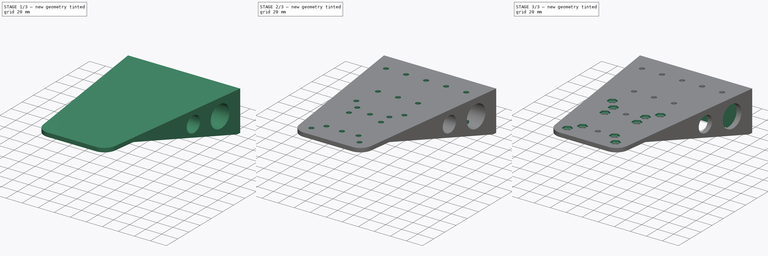
[diagram: build sequence overview — one tinted view per stage of 3, left to right]
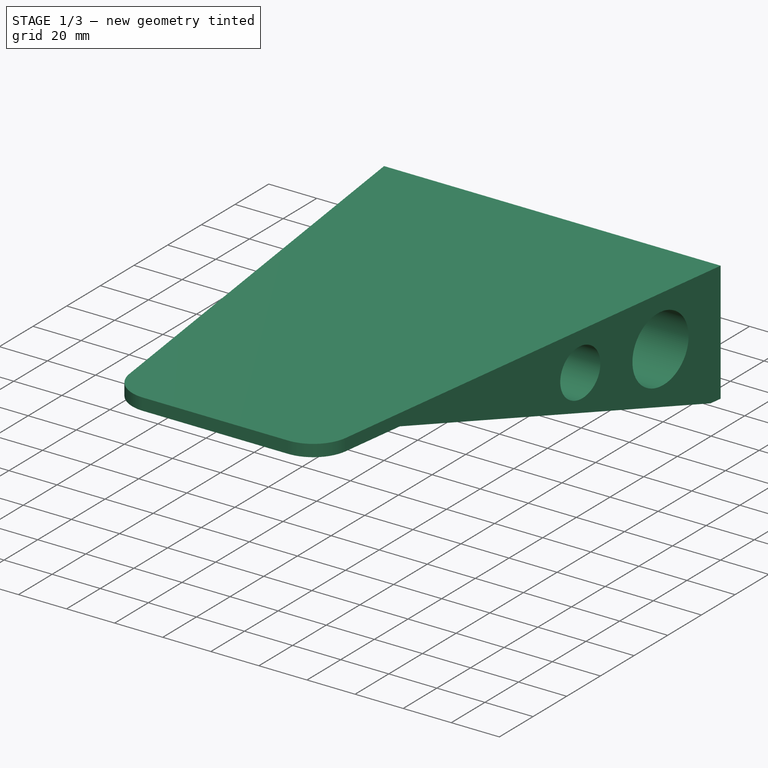
[diagram: stage 1 of 3 — iso view after this stage's code; geometry added in this stage tinted green]
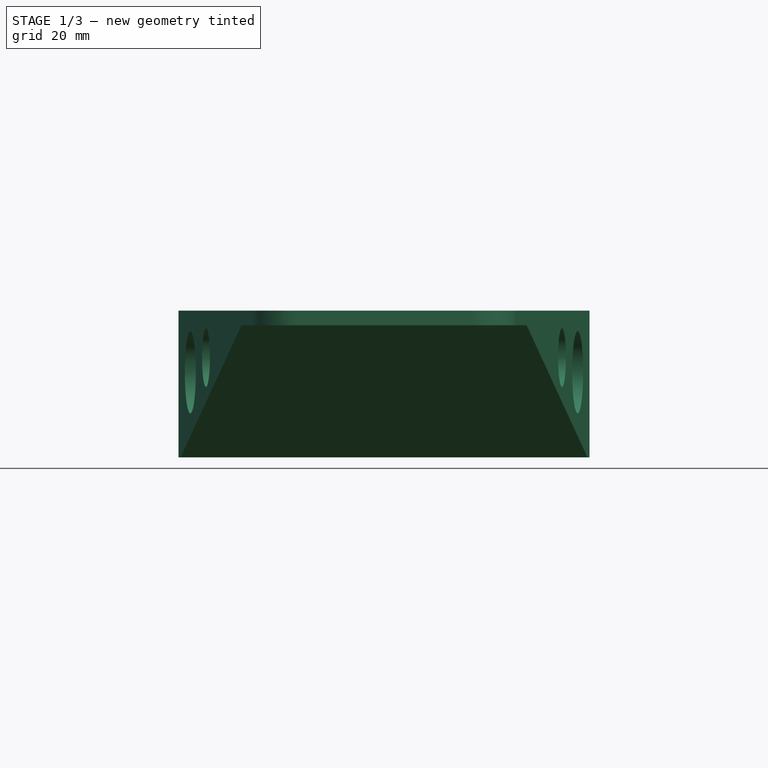
[diagram: stage 1 of 3 — front view after this stage's code; geometry added in this stage tinted green]
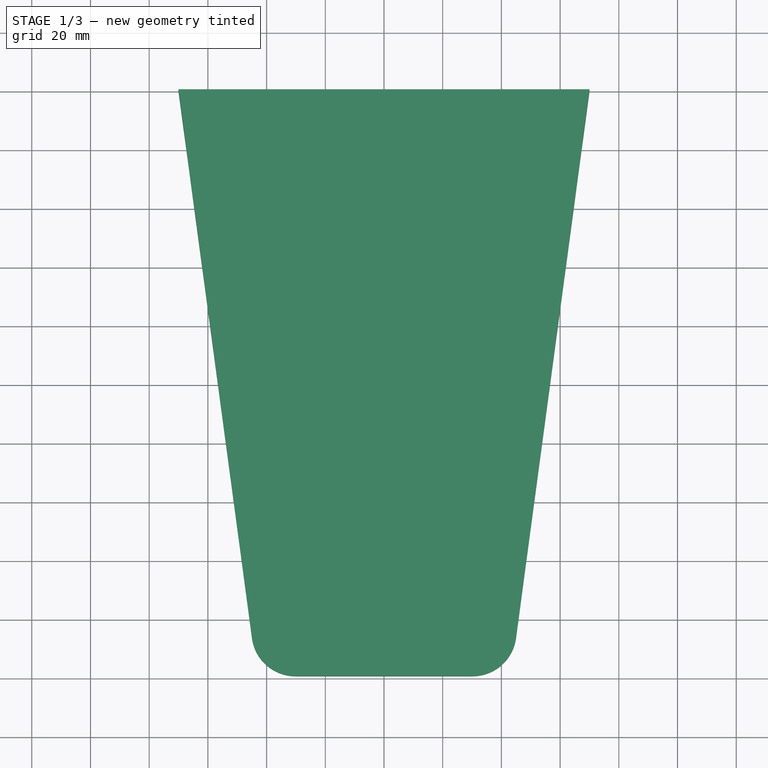
[diagram: stage 1 of 3 — top view after this stage's code; geometry added in this stage tinted green]
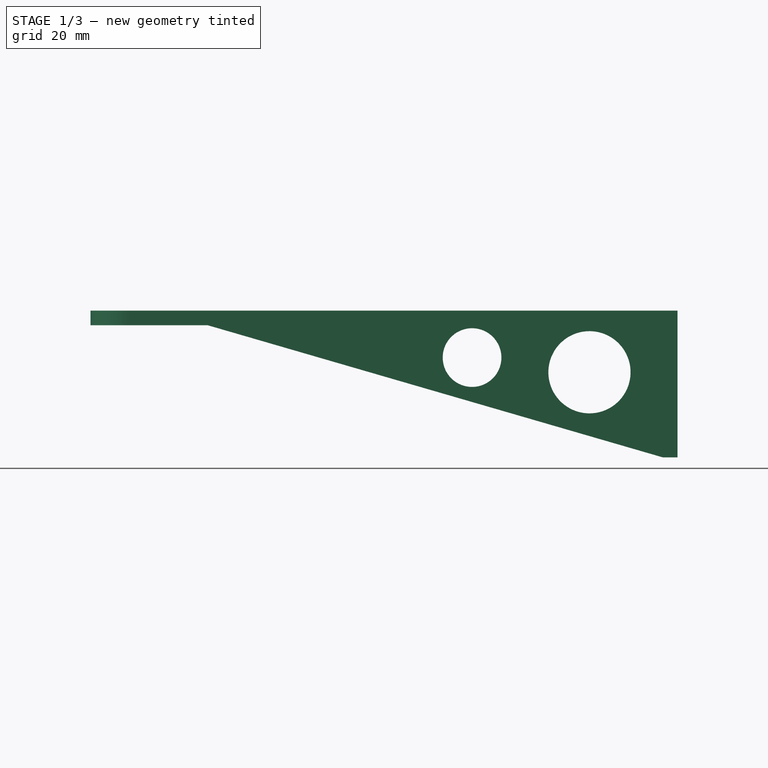
[diagram: stage 1 of 3 — right view after this stage's code; geometry added in this stage tinted green]
FCSTD DOCUMENT  (FreeCAD 0.20R)
Label: T07_rearchassis
License: All rights reserved
LicenseURL: http://en.wikipedia.org/wiki/All_rights_reserved
objects: Sketcher::SketchObject×8, PartDesign::Pocket×7, PartDesign::Pad×1, PartDesign::Body×1
note: 25 computed .brp shape members not serialized (recipe doc carries the construction recipe); baked Part::Feature solids carry a one-line shape summary decoded from their .brp

FEATURE [Sketcher::SketchObject] Sketch
  FullyConstrained = false
  MapMode = 3
  Placement = pos=(0,0,0) rot=(-0.57735,-0.57735,0.57735;2.0944rad)
  Support = -> [Sketch]
  sketch-geometry (8):
    g0: LineSegment StartX=-100 StartY=5 StartZ=0 EndX=100 EndY=5 EndZ=0
    g1: LineSegment StartX=100 StartY=5 StartZ=0 EndX=100 EndY=-45 EndZ=0
    g2: LineSegment StartX=-60 StartY=0 StartZ=0 EndX=-100 EndY=-3e-16 EndZ=0
    g3: LineSegment StartX=-100 StartY=-3e-16 StartZ=0 EndX=-100 EndY=5 EndZ=0
    g4: LineSegment StartX=100 StartY=-45 StartZ=0 EndX=95 EndY=-45 EndZ=0
    g5: LineSegment StartX=95 StartY=-45 StartZ=0 EndX=-60 EndY=0 EndZ=0
    g6: Circle CenterX=70 CenterY=-16 CenterZ=0 NormalX=0 NormalY=0 NormalZ=1 AngleXU=0 Radius=14
    g7: Circle CenterX=30 CenterY=-11 CenterZ=0 NormalX=0 NormalY=0 NormalZ=1 AngleXU=0 Radius=10
  constraints (24):
    c: Coincident(g0,g1)
    c: DistanceY(g2,g0) = 5
    c: DistanceY(g1,g0) = 50
    c: DistanceY(g2,g2) = 0
    c: Distance(g0) = 200
    c: Distance(g2) = 40
    c: DistanceX(g1,g0) = 0
    c: DistanceY(g-1,g0) = 5
    c: DistanceX(g-1,g0) = 100
    c: Coincident(g3,g0)
    c: Coincident(g3,g2)
    c: DistanceX(g2,g0) = 0
    c: Horizontal(g0)
    c: Coincident(g4,g5)
    c: Coincident(g4,g1)
    c: Coincident(g5,g2)
    c: Horizontal(g4)
    c: Distance(g4) = 5
    c: DistanceX(g6,g0) = 30
    c: DistanceX(g7,g0) = 70
    c: DistanceY(g6,g0) = 21
    c: DistanceY(g7,g0) = 16
    c: Diameter(g6) = 28
    c: Diameter(g7) = 20
FEATURE [PartDesign::Pad] Pad
  AllowMultiFace = false
  Direction = (1,1,1)
  Length = 140
  Length2 = 100
  Midplane = true
  Placement = pos=(0,0,0) rot=(0.57735,0.57735,0.57735;2.0944rad)
  Profile = -> Sketch
  Type = 0
FEATURE [Sketcher::SketchObject] Sketch010
  FullyConstrained = true
  MapMode = 5
  Placement = pos=(3e-16,-5e-16,5) rot=(0,0,-1;1.5708rad)
  Support = -> [Pad]
  sketch-geometry (4):
    g0: LineSegment StartX=-100 StartY=70 StartZ=0 EndX=86.9878 EndY=45 EndZ=0
    g1: LineSegment StartX=100 StartY=70 StartZ=0 EndX=-100 EndY=70 EndZ=0
    g2: ArcOfCircle CenterX=85 CenterY=30.1323 CenterZ=0 NormalX=0 NormalY=0 NormalZ=1 AngleXU=0 Radius=15 StartAngle=0 EndAngle=1.43789
    g3: LineSegment StartX=100 StartY=70 StartZ=0 EndX=100 EndY=30.1323 EndZ=0
  constraints (11):
    c: Coincident(g1,g0)
    c: Horizontal(g1)
    c: Distance(g1) = 200
    c: DistanceY(g-1,g1) = 70
    c: DistanceX(g-1,g1) = 100
    c: Tangent(g0,g2) = 1.5708
    c: Radius(g2) = 15
    c: DistanceY(g0,g1) = 25
    c: Coincident(g3,g1)
    c: Vertical(g3)
    c: Tangent(g3,g2) = 1.5708
FEATURE [PartDesign::Pocket] Pocket
  AllowMultiFace = false
  BaseFeature = -> Pad
  Direction = (-1e-16,1e-16,-1)
  Length = 5
  Length2 = 100
  Placement = pos=(0,0,0) rot=(0.57735,0.57735,0.57735;2.0944rad)
  Profile = -> Sketch010
  Type = 1
FEATURE [Sketcher::SketchObject] Sketch011
  FullyConstrained = true
  MapMode = 5
  Placement = pos=(3e-16,-5e-16,5) rot=(0,0,-1;1.5708rad)
  Support = -> [Pocket]
  sketch-geometry (4):
    g0: LineSegment StartX=-100 StartY=-70 StartZ=0 EndX=100 EndY=-70 EndZ=0
    g1: LineSegment StartX=86.9878 StartY=-45 StartZ=0 EndX=-100 EndY=-70 EndZ=0
    g2: ArcOfCircle CenterX=85 CenterY=-30.1323 CenterZ=0 NormalX=0 NormalY=0 NormalZ=1 AngleXU=0 Radius=15 StartAngle=4.8453 EndAngle=6.28319
    g3: LineSegment StartX=100 StartY=-70 StartZ=0 EndX=100 EndY=-30.1322 EndZ=0
  constraints (12):
    c: Coincident(g1,g0)
    c: DistanceY(g0,g-1) = 70
    c: DistanceX(g-1,g0) = 100
    c: Horizontal(g0)
    c: Distance(g0) = 200
    c: Tangent(g1,g2) = 1.5708
    c: Coincident(g3,g0)
    c: Coincident(g3,g2)
    c: Vertical(g3)
    c: DistanceY(g0,g1) = 25
    c: Radius(g2) = 15
    c: Tangent(g2,g3)
FEATURE [PartDesign::Pocket] Pocket006
  AllowMultiFace = false
  BaseFeature = -> Pocket
  Direction = (-1e-16,1e-16,-1)
  Length = 5
  Length2 = 100
  Placement = pos=(0,0,0) rot=(0.57735,0.57735,0.57735;2.0944rad)
  Profile = -> Sketch011
  Type = 1
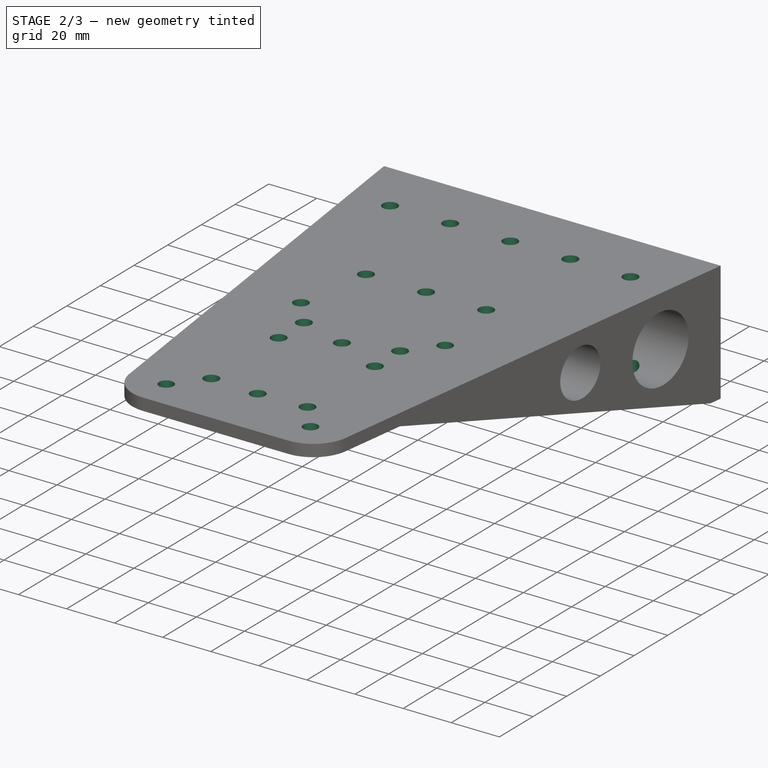
[diagram: stage 2 of 3 — iso view after this stage's code; geometry added in this stage tinted green]
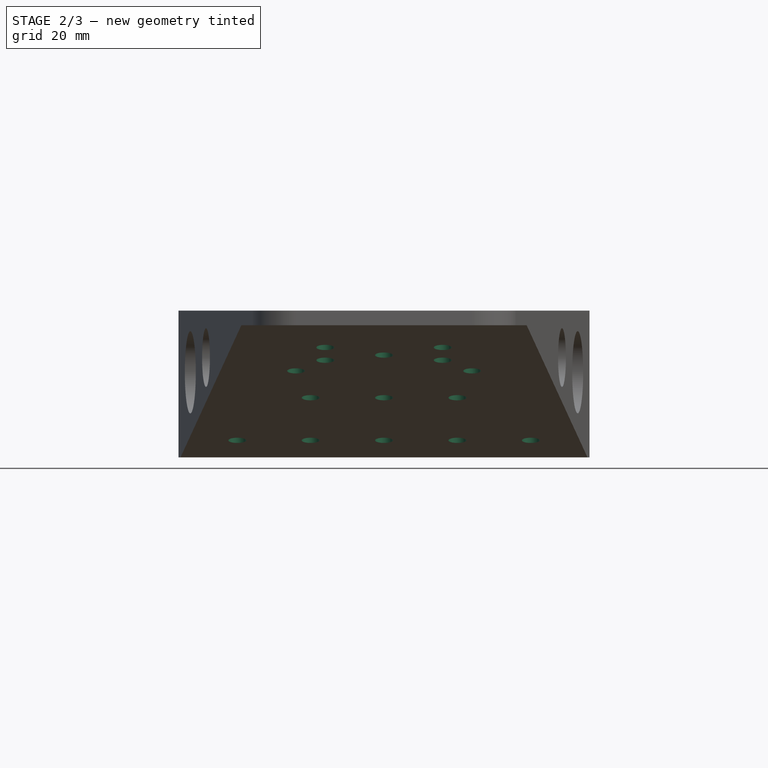
[diagram: stage 2 of 3 — front view after this stage's code; geometry added in this stage tinted green]
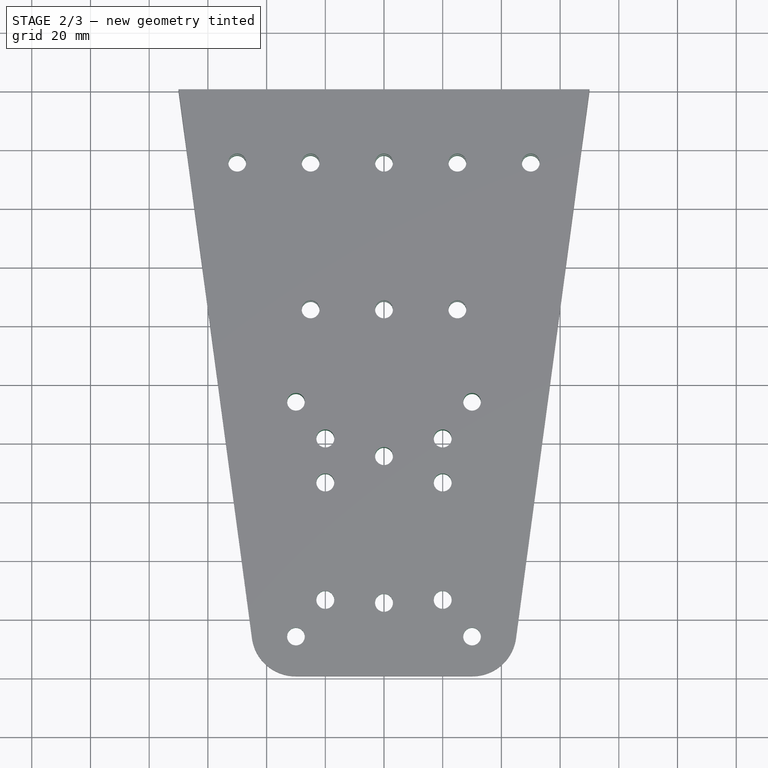
[diagram: stage 2 of 3 — top view after this stage's code; geometry added in this stage tinted green]
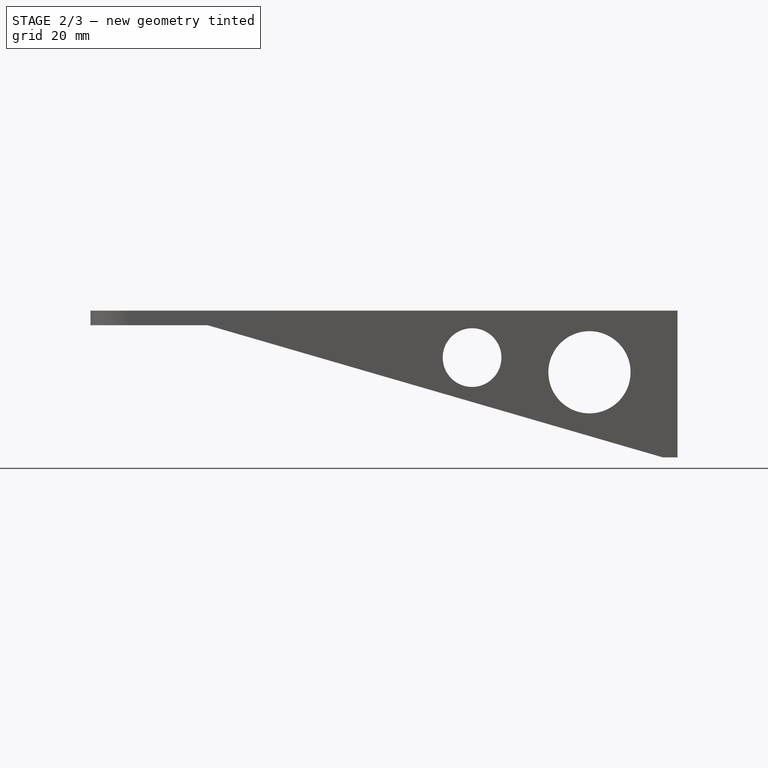
[diagram: stage 2 of 3 — right view after this stage's code; geometry added in this stage tinted green]
FEATURE [Sketcher::SketchObject] Sketch013
  FullyConstrained = true
  MapMode = 5
  Placement = pos=(-1e-15,1e-15,5) rot=(0,0,-1;1.5708rad)
  sketch-geometry (21):
    g0: Circle CenterX=-75 CenterY=0 CenterZ=0 NormalX=0 NormalY=0 NormalZ=1 AngleXU=0 Radius=3.05
    g1: Circle CenterX=-25 CenterY=0 CenterZ=0 NormalX=0 NormalY=0 NormalZ=1 AngleXU=0 Radius=3.05
    g2: Circle CenterX=25 CenterY=0 CenterZ=0 NormalX=0 NormalY=0 NormalZ=1 AngleXU=0 Radius=3.05
    g3: Circle CenterX=75 CenterY=0 CenterZ=0 NormalX=0 NormalY=0 NormalZ=1 AngleXU=0 Radius=3.05
    g4: Circle CenterX=-75 CenterY=50 CenterZ=0 NormalX=0 NormalY=0 NormalZ=1 AngleXU=0 Radius=3.05
    g5: Circle CenterX=-75 CenterY=-50 CenterZ=0 NormalX=0 NormalY=0 NormalZ=1 AngleXU=0 Radius=3.05
    g6: Circle CenterX=-75 CenterY=-25 CenterZ=0 NormalX=0 NormalY=0 NormalZ=1 AngleXU=0 Radius=3.05
    g7: Circle CenterX=-75 CenterY=25 CenterZ=0 NormalX=0 NormalY=0 NormalZ=1 AngleXU=0 Radius=3.05
    g8: Circle CenterX=-25 CenterY=25 CenterZ=0 NormalX=0 NormalY=0 NormalZ=1 AngleXU=0 Radius=3.05
    g9: Circle CenterX=-25 CenterY=-25 CenterZ=0 NormalX=0 NormalY=0 NormalZ=1 AngleXU=0 Radius=3.05
    g10: LineSegment StartX=46.5 StartY=50 StartZ=0 EndX=46.5 EndY=-50 EndZ=0
    g11: Circle CenterX=6.5 CenterY=30 CenterZ=0 NormalX=0 NormalY=0 NormalZ=1 AngleXU=0 Radius=3
    g12: Circle CenterX=86.5 CenterY=30 CenterZ=0 NormalX=0 NormalY=0 NormalZ=1 AngleXU=0 Radius=3
    g13: Circle CenterX=86.5 CenterY=-30 CenterZ=0 NormalX=0 NormalY=0 NormalZ=1 AngleXU=0 Radius=3
    g14: Circle CenterX=6.5 CenterY=-30 CenterZ=0 NormalX=0 NormalY=0 NormalZ=1 AngleXU=0 Radius=3
    g15: Circle CenterX=19 CenterY=20 CenterZ=0 NormalX=0 NormalY=0 NormalZ=1 AngleXU=0 Radius=3.05
    g16: Circle CenterX=74 CenterY=20 CenterZ=0 NormalX=0 NormalY=0 NormalZ=1 AngleXU=0 Radius=3.05
    g17: Circle CenterX=74 CenterY=-20 CenterZ=0 NormalX=0 NormalY=0 NormalZ=1 AngleXU=0 Radius=3.05
    g18: Circle CenterX=19 CenterY=-20 CenterZ=0 NormalX=0 NormalY=0 NormalZ=1 AngleXU=0 Radius=3.05
    g19: Circle CenterX=34 CenterY=20 CenterZ=0 NormalX=0 NormalY=0 NormalZ=1 AngleXU=0 Radius=3.05
    g20: Circle CenterX=34 CenterY=-20 CenterZ=0 NormalX=0 NormalY=0 NormalZ=1 AngleXU=0 Radius=3.05
  constraints (53):
    c: Equal(g7,g8)
    c: Equal(g4,g7)
    c: Equal(g7,g0)
    c: Equal(g7,g6)
    c: Equal(g7,g5)
    c: Equal(g7,g1)
    c: Equal(g7,g2)
    c: Equal(g7,g3)
    c: Diameter(g7) = 6.1
    c: DistanceX(g4,g7) = 0
    c: DistanceX(g7,g0) = 0
    c: DistanceY(g0,g-1) = 0
    c: DistanceY(g1,g-1) = 0
    c: DistanceY(g2,g-1) = 0
    c: DistanceY(g3,g-1) = 0
    c: DistanceX(g0,g1) = 50
    c: DistanceX(g1,g2) = 50
    c: DistanceX(g2,g3) = 50
    c: DistanceX(g1,g-1) = 25
    c: DistanceY(g0,g7) = 25
    c: DistanceY(g7,g4) = 25
    c: DistanceY(g1,g8) = 25
    c: Equal(g7,g9)
    c: Symmetric(g8,g9,g-1)
    c: Symmetric(g7,g6,g-1)
    c: Symmetric(g4,g5,g-1)
    c: DistanceX(g8,g1) = 0
    c: Distance(g10) = 100
    c: Symmetric(g10,g10,g-1)
    c: DistanceX(g-1,g10) = 46.5
    c: Equal(g11,g12)
    c: Equal(g12,g13)
    c: Equal(g11,g14)
    c: Symmetric(g11,g12,g10)
    c: Symmetric(g11,g14,g-1)
    c: Symmetric(g14,g13,g10)
    c: DistanceY(g-1,g11) = 30
    c: DistanceX(g11,g10) = 40
    c: Diameter(g11) = 6
    c: Equal(g15,g16)
    c: Equal(g16,g17)
    c: Equal(g15,g18)
    c: Symmetric(g15,g16,g10)
    c: Symmetric(g18,g17,g10)
    c: Symmetric(g15,g18,g-1)
    c: Diameter(g15) = 6.1
    c: DistanceY(g18,g15) = 40
    c: DistanceX(g15,g16) = 55
    c: Equal(g15,g19)
    c: Equal(g19,g20)
    c: Symmetric(g20,g19,g-1)
    c: DistanceY(g20,g19) = 40
    c: DistanceX(g19,g16) = 40
FEATURE [Sketcher::SketchObject] Sketch014
  FullyConstrained = true
  MapMode = 5
  Placement = pos=(3.3e-14,100,-1.1e-14) rot=(0.57735,0.57735,0.57735;4.18879rad)
  sketch-geometry (8):
    g0: Circle CenterX=-35 CenterY=54 CenterZ=0 NormalX=0 NormalY=0 NormalZ=1 AngleXU=0 Radius=3.05
    g1: Circle CenterX=-10 CenterY=54 CenterZ=0 NormalX=0 NormalY=0 NormalZ=1 AngleXU=0 Radius=3.05
    g2: Circle CenterX=-35 CenterY=-54 CenterZ=0 NormalX=0 NormalY=0 NormalZ=1 AngleXU=0 Radius=3.05
    g3: Circle CenterX=-10 CenterY=-54 CenterZ=0 NormalX=0 NormalY=0 NormalZ=1 AngleXU=0 Radius=3.05
    g4: ArcOfCircle CenterX=-30 CenterY=1e-16 CenterZ=0 NormalX=0 NormalY=0 NormalZ=1 AngleXU=0 Radius=5 StartAngle=1.5708 EndAngle=4.71239
    g5: ArcOfCircle CenterX=-10 CenterY=0 CenterZ=0 NormalX=0 NormalY=0 NormalZ=1 AngleXU=0 Radius=5 StartAngle=4.71239 EndAngle=7.85398
    g6: LineSegment StartX=-30 StartY=-5 StartZ=0 EndX=-10 EndY=-5 EndZ=0
    g7: LineSegment StartX=-30 StartY=5 StartZ=0 EndX=-10 EndY=5 EndZ=0
  constraints (20):
    c: DistanceX(g1,g-1) = 10
    c: Equal(g0,g1)
    c: Equal(g1,g2)
    c: Symmetric(g0,g2,g-1)
    c: DistanceY(g-1,g1) = 54
    c: DistanceY(g-1,g0) = 54
    c: Diameter(g0) = 6.1
    c: Equal(g1,g3)
    c: Symmetric(g1,g3,g-1)
    c: Tangent(g4,g7) = 1.5708
    c: Tangent(g4,g6) = -1.5708
    c: Tangent(g6,g5) = -1.5708
    c: Tangent(g7,g5) = 1.5708
    c: Horizontal(g6)
    c: Equal(g4,g5)
    c: DistanceX(g4,g5) = 20
    c: DistanceX(g5,g-1) = 10
    c: Diameter(g5) = 10
    c: DistanceY(g-1,g5) = 0
    c: DistanceX(g0,g-1) = 35
FEATURE [PartDesign::Pocket] Pocket009
  AllowMultiFace = false
  BaseFeature = -> Pocket006
  Direction = (-1e-15,-1,-1e-16)
  Length = 5
  Length2 = 100
  Placement = pos=(0,0,0) rot=(0.57735,0.57735,0.57735;2.0944rad)
  Profile = -> Sketch014
  ReferenceAxis = -> Sketch014 [N_Axis]
  Type = 0
FEATURE [PartDesign::Pocket] Pocket010
  AllowMultiFace = false
  BaseFeature = -> Pocket009
  Direction = (0,0,-1)
  Length = 5
  Length2 = 100
  Placement = pos=(0,0,0) rot=(0.57735,0.57735,0.57735;2.0944rad)
  Profile = -> Sketch013
  Type = 1
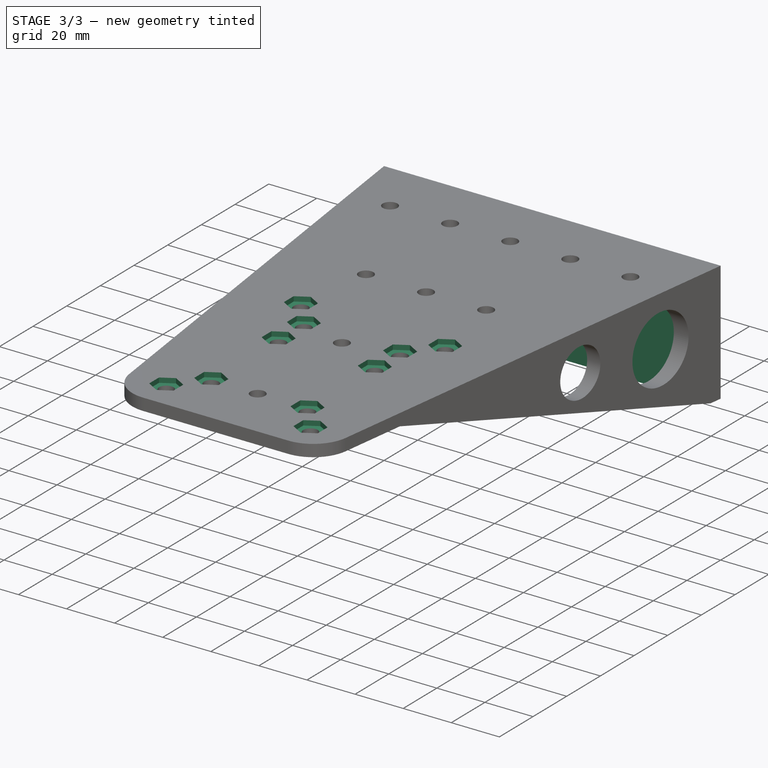
[diagram: stage 3 of 3 — iso view after this stage's code; geometry added in this stage tinted green]
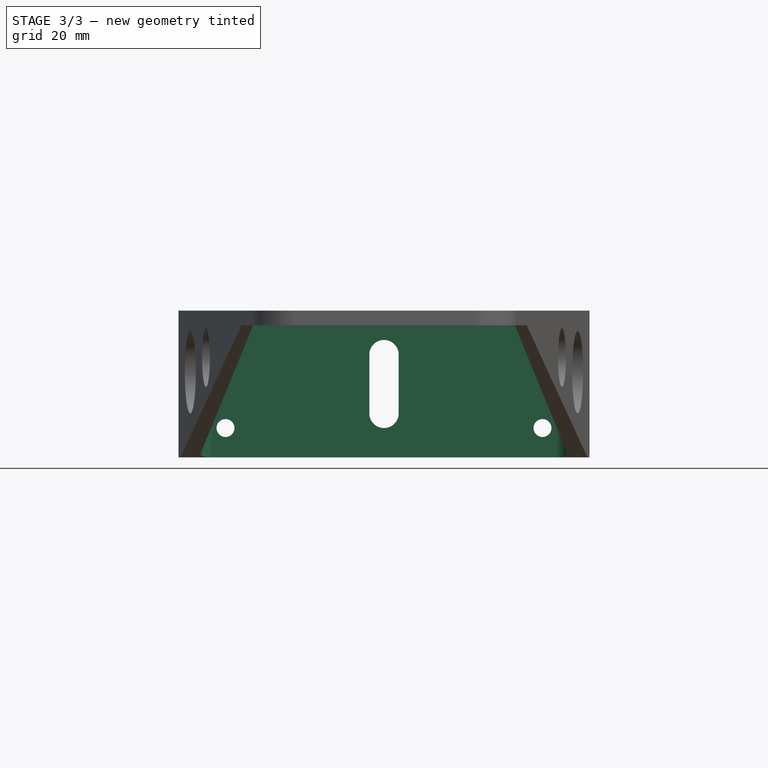
[diagram: stage 3 of 3 — front view after this stage's code; geometry added in this stage tinted green]
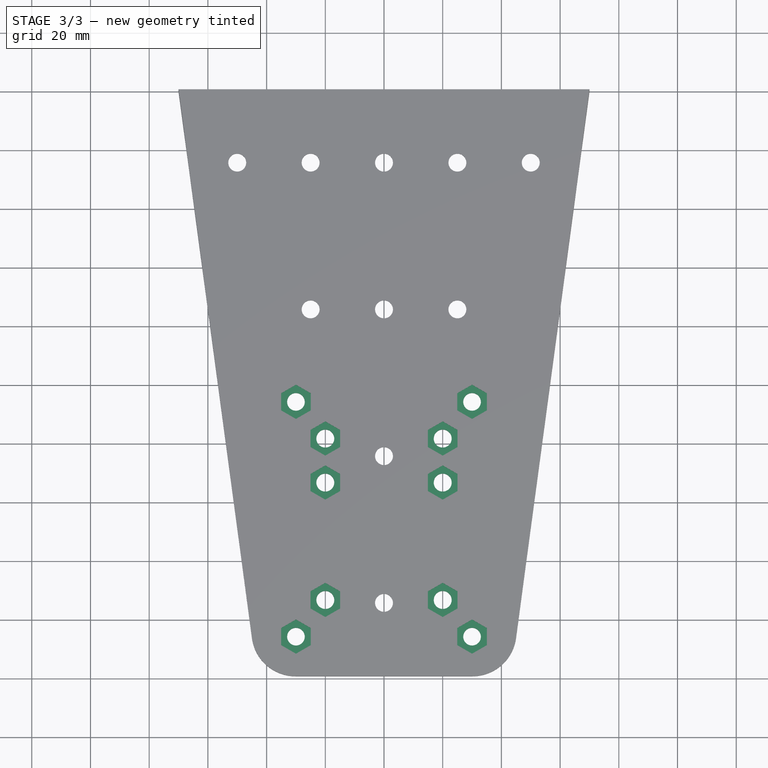
[diagram: stage 3 of 3 — top view after this stage's code; geometry added in this stage tinted green]
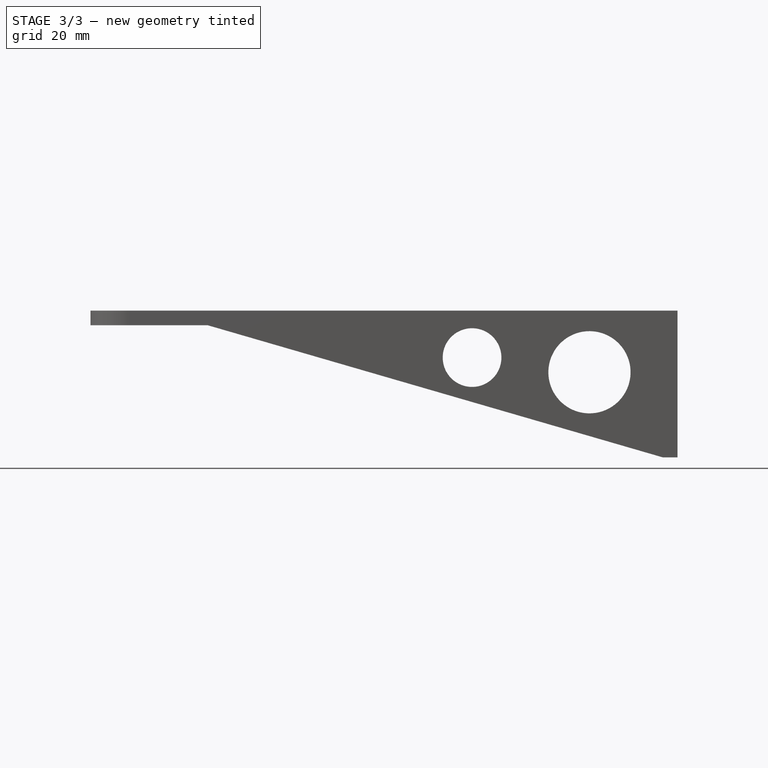
[diagram: stage 3 of 3 — right view after this stage's code; geometry added in this stage tinted green]
FEATURE [Sketcher::SketchObject] Sketch016
  FullyConstrained = true
  MapMode = 5
  Placement = pos=(0,0,-5e-14) rot=(0.707107,0.707107,0;3.14159rad)
  sketch-geometry (6):
    g0: LineSegment StartX=-90 StartY=41 StartZ=0 EndX=-90 EndY=-41 EndZ=0
    g1: LineSegment StartX=-90 StartY=-41 StartZ=0 EndX=90.527 EndY=-62.5 EndZ=0
    g2: LineSegment StartX=95 StartY=-58.5281 StartZ=0 EndX=95 EndY=58.5281 EndZ=0
    g3: LineSegment StartX=90.527 StartY=62.5 StartZ=0 EndX=-90 EndY=41 EndZ=0
    g4: ArcOfCircle CenterX=91 CenterY=58.5281 CenterZ=0 NormalX=0 NormalY=0 NormalZ=1 AngleXU=0 Radius=4 StartAngle=2.88e-14 EndAngle=1.68933
    g5: ArcOfCircle CenterX=91 CenterY=-58.5281 CenterZ=0 NormalX=0 NormalY=0 NormalZ=1 AngleXU=0 Radius=4 StartAngle=4.59385 EndAngle=6.28319
  constraints (14):
    c: Coincident(g0,g1)
    c: Coincident(g3,g0)
    c: Tangent(g2,g4) = -1.5708
    c: Tangent(g3,g4) = -1.5708
    c: Tangent(g2,g5) = -1.5708
    c: Tangent(g1,g5) = -1.5708
    c: Symmetric(g0,g0,g-1)
    c: Symmetric(g2,g2,g-1)
    c: Radius(g4) = 4
    c: Equal(g4,g5)
    c: DistanceX(g0,g-1) = 90
    c: DistanceY(g0,g0) = 82
    c: DistanceY(g1,g3) = 125
    c: DistanceX(g0,g2) = 185
FEATURE [PartDesign::Pocket] Pocket012
  AllowMultiFace = false
  BaseFeature = -> Pocket010
  Direction = (0,1e-15,1)
  Length = 45
  Length2 = 100
  Placement = pos=(0,0,0) rot=(0.57735,0.57735,0.57735;2.0944rad)
  Profile = -> Sketch016
  Reversed = true
  Type = 0
FEATURE [Sketcher::SketchObject] Sketch057
  FullyConstrained = true
  MapMode = 5
  Placement = pos=(0,-1e-15,5) rot=(0,0,-1;1.5708rad)
  sketch-geometry (75):
    g0: LineSegment StartX=46.5 StartY=50 StartZ=0 EndX=46.5 EndY=-50 EndZ=0
    g1: Circle CenterX=6.5 CenterY=30 CenterZ=0 NormalX=0 NormalY=0 NormalZ=1 AngleXU=0 Radius=3
    g2: Circle CenterX=86.5 CenterY=30 CenterZ=0 NormalX=0 NormalY=0 NormalZ=1 AngleXU=0 Radius=3
    g3: Circle CenterX=86.5 CenterY=-30 CenterZ=0 NormalX=0 NormalY=0 NormalZ=1 AngleXU=0 Radius=3
    g4: Circle CenterX=6.5 CenterY=-30 CenterZ=0 NormalX=0 NormalY=0 NormalZ=1 AngleXU=0 Radius=3
    g5: LineSegment StartX=9.41562 StartY=24.95 StartZ=0 EndX=12.3312 EndY=30 EndZ=0
    g6: LineSegment StartX=12.3312 StartY=30 StartZ=0 EndX=9.41562 EndY=35.05 EndZ=0
    g7: LineSegment StartX=9.41562 StartY=35.05 StartZ=0 EndX=3.58438 EndY=35.05 EndZ=0
    g8: LineSegment StartX=3.58438 StartY=35.05 StartZ=0 EndX=0.668762 EndY=30 EndZ=0
    g9: LineSegment StartX=0.668762 StartY=30 StartZ=0 EndX=3.58438 EndY=24.95 EndZ=0
    g10: LineSegment StartX=3.58438 StartY=24.95 StartZ=0 EndX=9.41562 EndY=24.95 EndZ=0
    g11: Circle CenterX=6.5 CenterY=30 CenterZ=0 NormalX=0 NormalY=0 NormalZ=1 AngleXU=0 Radius=5.83124
    g12: LineSegment StartX=21.9156 StartY=25.05 StartZ=0 EndX=16.0844 EndY=25.05 EndZ=0
    g13: LineSegment StartX=16.0844 StartY=25.05 StartZ=0 EndX=13.1688 EndY=20 EndZ=0
    g14: LineSegment StartX=13.1688 StartY=20 StartZ=0 EndX=16.0844 EndY=14.95 EndZ=0
    g15: LineSegment StartX=16.0844 StartY=14.95 StartZ=0 EndX=21.9156 EndY=14.95 EndZ=0
    g16: LineSegment StartX=21.9156 StartY=14.95 StartZ=0 EndX=24.8312 EndY=20 EndZ=0
    g17: LineSegment StartX=24.8312 StartY=20 StartZ=0 EndX=21.9156 EndY=25.05 EndZ=0
    g18: Circle CenterX=19 CenterY=20 CenterZ=0 NormalX=0 NormalY=0 NormalZ=1 AngleXU=0 Radius=5.83124
    g19: LineSegment StartX=89.4156 StartY=24.95 StartZ=0 EndX=92.3312 EndY=30 EndZ=0
    g20: LineSegment StartX=92.3312 StartY=30 StartZ=0 EndX=89.4156 EndY=35.05 EndZ=0
    g21: LineSegment StartX=89.4156 StartY=35.05 StartZ=0 EndX=83.5844 EndY=35.05 EndZ=0
    g22: LineSegment StartX=83.5844 StartY=35.05 StartZ=0 EndX=80.6688 EndY=30 EndZ=0
    g23: LineSegment StartX=80.6688 StartY=30 StartZ=0 EndX=83.5844 EndY=24.95 EndZ=0
    g24: LineSegment StartX=83.5844 StartY=24.95 StartZ=0 EndX=89.4156 EndY=24.95 EndZ=0
    g25: Circle CenterX=86.5 CenterY=30 CenterZ=0 NormalX=0 NormalY=0 NormalZ=1 AngleXU=0 Radius=5.83124
    g26: LineSegment StartX=71.0844 StartY=14.95 StartZ=0 EndX=76.9156 EndY=14.95 EndZ=0
    g27: LineSegment StartX=76.9156 StartY=14.95 StartZ=0 EndX=79.8312 EndY=20 EndZ=0
    g28: LineSegment StartX=79.8312 StartY=20 StartZ=0 EndX=76.9156 EndY=25.05 EndZ=0
    g29: LineSegment StartX=76.9156 StartY=25.05 StartZ=0 EndX=71.0844 EndY=25.05 EndZ=0
    g30: LineSegment StartX=71.0844 StartY=25.05 StartZ=0 EndX=68.1688 EndY=20 EndZ=0
    g31: LineSegment StartX=68.1688 StartY=20 StartZ=0 EndX=71.0844 EndY=14.95 EndZ=0
    g32: Circle CenterX=74 CenterY=20 CenterZ=0 NormalX=0 NormalY=0 NormalZ=1 AngleXU=0 Radius=5.83124
    g33: LineSegment StartX=24.8312 StartY=-20 StartZ=0 EndX=21.9156 EndY=-14.95 EndZ=0
    g34: LineSegment StartX=21.9156 StartY=-14.95 StartZ=0 EndX=16.0844 EndY=-14.95 EndZ=0
    g35: LineSegment StartX=16.0844 StartY=-14.95 StartZ=0 EndX=13.1688 EndY=-20 EndZ=0
    g36: LineSegment StartX=13.1688 StartY=-20 StartZ=0 EndX=16.0844 EndY=-25.05 EndZ=0
    g37: LineSegment StartX=16.0844 StartY=-25.05 StartZ=0 EndX=21.9156 EndY=-25.05 EndZ=0
    g38: LineSegment StartX=21.9156 StartY=-25.05 StartZ=0 EndX=24.8312 EndY=-20 EndZ=0
    g39: Circle CenterX=19 CenterY=-20 CenterZ=0 NormalX=0 NormalY=0 NormalZ=1 AngleXU=0 Radius=5.83124
    g40: LineSegment StartX=3.58438 StartY=-35.05 StartZ=0 EndX=9.41562 EndY=-35.05 EndZ=0
    g41: LineSegment StartX=9.41562 StartY=-35.05 StartZ=0 EndX=12.3312 EndY=-30 EndZ=0
    g42: LineSegment StartX=12.3312 StartY=-30 StartZ=0 EndX=9.41562 EndY=-24.95 EndZ=0
    g43: LineSegment StartX=9.41562 StartY=-24.95 StartZ=0 EndX=3.58438 EndY=-24.95 EndZ=0
    g44: LineSegment StartX=3.58438 StartY=-24.95 StartZ=0 EndX=0.668762 EndY=-30 EndZ=0
    g45: LineSegment StartX=0.668762 StartY=-30 StartZ=0 EndX=3.58438 EndY=-35.05 EndZ=0
    g46: Circle CenterX=6.5 CenterY=-30 CenterZ=0 NormalX=0 NormalY=0 NormalZ=1 AngleXU=0 Radius=5.83124
    g47: LineSegment StartX=76.9156 StartY=-25.05 StartZ=0 EndX=79.8312 EndY=-20 EndZ=0
    g48: LineSegment StartX=79.8312 StartY=-20 StartZ=0 EndX=76.9156 EndY=-14.95 EndZ=0
    g49: LineSegment StartX=76.9156 StartY=-14.95 StartZ=0 EndX=71.0844 EndY=-14.95 EndZ=0
    g50: LineSegment StartX=71.0844 StartY=-14.95 StartZ=0 EndX=68.1688 EndY=-20 EndZ=0
    g51: LineSegment StartX=68.1688 StartY=-20 StartZ=0 EndX=71.0844 EndY=-25.05 EndZ=0
    g52: LineSegment StartX=71.0844 StartY=-25.05 StartZ=0 EndX=76.9156 EndY=-25.05 EndZ=0
    g53: Circle CenterX=74 CenterY=-20 CenterZ=0 NormalX=0 NormalY=0 NormalZ=1 AngleXU=0 Radius=5.83124
    g54: LineSegment StartX=89.4156 StartY=-35.05 StartZ=0 EndX=92.3312 EndY=-30 EndZ=0
    g55: LineSegment StartX=92.3312 StartY=-30 StartZ=0 EndX=89.4156 EndY=-24.95 EndZ=0
    g56: LineSegment StartX=89.4156 StartY=-24.95 StartZ=0 EndX=83.5844 EndY=-24.95 EndZ=0
    g57: LineSegment StartX=83.5844 StartY=-24.95 StartZ=0 EndX=80.6688 EndY=-30 EndZ=0
    g58: LineSegment StartX=80.6688 StartY=-30 StartZ=0 EndX=83.5844 EndY=-35.05 EndZ=0
    g59: LineSegment StartX=83.5844 StartY=-35.05 StartZ=0 EndX=89.4156 EndY=-35.05 EndZ=0
    g60: Circle CenterX=86.5 CenterY=-30 CenterZ=0 NormalX=0 NormalY=0 NormalZ=1 AngleXU=0 Radius=5.83124
    g61: LineSegment StartX=36.9156 StartY=-14.95 StartZ=0 EndX=31.0844 EndY=-14.95 EndZ=0
    g62: LineSegment StartX=31.0844 StartY=-14.95 StartZ=0 EndX=28.1688 EndY=-20 EndZ=0
    g63: LineSegment StartX=28.1688 StartY=-20 StartZ=0 EndX=31.0844 EndY=-25.05 EndZ=0
    g64: LineSegment StartX=31.0844 StartY=-25.05 StartZ=0 EndX=36.9156 EndY=-25.05 EndZ=0
    g65: LineSegment StartX=36.9156 StartY=-25.05 StartZ=0 EndX=39.8312 EndY=-20 EndZ=0
    g66: LineSegment StartX=39.8312 StartY=-20 StartZ=0 EndX=36.9156 EndY=-14.95 EndZ=0
    g67: Circle CenterX=34 CenterY=-20 CenterZ=0 NormalX=0 NormalY=0 NormalZ=1 AngleXU=0 Radius=5.83124
    g68: LineSegment StartX=36.9156 StartY=25.05 StartZ=0 EndX=31.0844 EndY=25.05 EndZ=0
    g69: LineSegment StartX=31.0844 StartY=25.05 StartZ=0 EndX=28.1688 EndY=20 EndZ=0
    g70: LineSegment StartX=28.1688 StartY=20 StartZ=0 EndX=31.0844 EndY=14.95 EndZ=0
    g71: LineSegment StartX=31.0844 StartY=14.95 StartZ=0 EndX=36.9156 EndY=14.95 EndZ=0
    g72: LineSegment StartX=36.9156 StartY=14.95 StartZ=0 EndX=39.8312 EndY=20 EndZ=0
    g73: LineSegment StartX=39.8312 StartY=20 StartZ=0 EndX=36.9156 EndY=25.05 EndZ=0
    g74: Circle CenterX=34 CenterY=20 CenterZ=0 NormalX=0 NormalY=0 NormalZ=1 AngleXU=0 Radius=5.83124
  constraints (175):
    c: Distance(g0) = 100
    c: Symmetric(g0,g0,g-1)
    c: DistanceX(g-1,g0) = 46.5
    c: Equal(g1,g2)
    c: Equal(g2,g3)
    c: Equal(g1,g4)
    c: Symmetric(g1,g2,g0)
    c: Symmetric(g1,g4,g-1)
    c: Symmetric(g4,g3,g0)
    c: DistanceY(g-1,g1) = 30
    c: DistanceX(g1,g0) = 40
    c: Diameter(g1) = 6
    c: Coincident(g5,g6)
    c: Coincident(g6,g7)
    c: Coincident(g7,g8)
    c: Coincident(g8,g9)
    c: Coincident(g9,g10)
    c: Coincident(g10,g5)
    c: Equal(g5, g6-g10) x5
    c: PointOnObject(g5,g11)
    c: PointOnObject(g6,g11)
    c: PointOnObject(g7,g11)
    c: PointOnObject(g8,g11)
    c: PointOnObject(g9,g11)
    c: PointOnObject(g10,g11)
    c: Coincident(g12,g13)
    c: Coincident(g13,g14)
    c: Coincident(g14,g15)
    c: Coincident(g15,g16)
    c: Coincident(g16,g17)
    c: Coincident(g17,g12)
    c: Equal(g12, g13-g17) x5
    c: PointOnObject(g12,g18)
    c: PointOnObject(g13,g18)
    c: PointOnObject(g14,g18)
    c: PointOnObject(g15,g18)
    c: PointOnObject(g16,g18)
    c: PointOnObject(g17,g18)
    c: Coincident(g19,g20)
    c: Coincident(g20,g21)
    c: Coincident(g21,g22)
    c: Coincident(g22,g23)
    c: Coincident(g23,g24)
    c: Coincident(g24,g19)
    c: Equal(g19, g20-g24) x5
    c: PointOnObject(g19,g25)
    c: PointOnObject(g20,g25)
    c: PointOnObject(g21,g25)
    c: PointOnObject(g22,g25)
    c: PointOnObject(g23,g25)
    c: PointOnObject(g24,g25)
    c: Coincident(g26,g27)
    c: Coincident(g27,g28)
    c: Coincident(g28,g29)
    c: Coincident(g29,g30)
    c: Coincident(g30,g31)
    c: Coincident(g31,g26)
    c: Equal(g26, g27-g31) x5
    c: PointOnObject(g26,g32)
    c: PointOnObject(g27,g32)
    c: PointOnObject(g28,g32)
    c: PointOnObject(g29,g32)
    c: PointOnObject(g30,g32)
    c: PointOnObject(g31,g32)
    c: Coincident(g33,g34)
    c: Coincident(g34,g35)
    c: Coincident(g35,g36)
    c: Coincident(g36,g37)
    c: Coincident(g37,g38)
    c: Coincident(g38,g33)
    c: Equal(g33, g34-g38) x5
    c: PointOnObject(g33,g39)
    c: PointOnObject(g34,g39)
    c: PointOnObject(g35,g39)
    c: PointOnObject(g36,g39)
    c: PointOnObject(g37,g39)
    c: PointOnObject(g38,g39)
    c: Coincident(g40,g41)
    c: Coincident(g41,g42)
    c: Coincident(g42,g43)
    c: Coincident(g43,g44)
    c: Coincident(g44,g45)
    c: Coincident(g45,g40)
    c: Equal(g40, g41-g45) x5
    c: PointOnObject(g40,g46)
    c: PointOnObject(g41,g46)
    c: PointOnObject(g42,g46)
    c: PointOnObject(g43,g46)
    c: PointOnObject(g44,g46)
    c: PointOnObject(g45,g46)
    c: Coincident(g47,g48)
    c: Coincident(g48,g49)
    c: Coincident(g49,g50)
    c: Coincident(g50,g51)
    c: Coincident(g51,g52)
    c: Coincident(g52,g47)
    c: Equal(g47, g48-g52) x5
    c: PointOnObject(g47,g53)
    c: PointOnObject(g48,g53)
    c: PointOnObject(g49,g53)
    c: PointOnObject(g50,g53)
    c: PointOnObject(g51,g53)
    c: PointOnObject(g52,g53)
    c: Coincident(g54,g55)
    c: Coincident(g55,g56)
    c: Coincident(g56,g57)
    c: Coincident(g57,g58)
    c: Coincident(g58,g59)
    c: Coincident(g59,g54)
    c: Equal(g54, g55-g59) x5
    c: PointOnObject(g54,g60)
    c: PointOnObject(g55,g60)
    c: PointOnObject(g56,g60)
    c: PointOnObject(g57,g60)
    c: PointOnObject(g58,g60)
    c: PointOnObject(g59,g60)
    c: Symmetric(g39,g53,g0)
    c: Symmetric(g53,g32,g-1)
    c: Symmetric(g18,g39,g-1)
    c: DistanceX(g18,g32) = 55
    c: DistanceY(g39,g18) = 40
    c: Equal(g39,g46)
    c: Equal(g53,g60)
    c: Equal(g53,g39)
    c: Equal(g53,g32)
    c: Equal(g32,g25)
    c: Equal(g18,g32)
    c: Equal(g11,g18)
    c: Horizontal(g12)
    c: Horizontal(g7)
    c: Horizontal(g21)
    c: Horizontal(g29)
    c: Horizontal(g49)
    c: Horizontal(g56)
    c: Horizontal(g34)
    c: Horizontal(g43)
    c: DistanceY(g15,g12) = 10.1
    c: Symmetric(g11,g25,g0)
    c: Symmetric(g46,g60,g0)
    c: Symmetric(g25,g60,g-1)
    c: DistanceX(g11,g25) = 80
    c: DistanceY(g46,g11) = 60
    c: Coincident(g61,g62)
    c: Coincident(g62,g63)
    c: Coincident(g63,g64)
    c: Coincident(g64,g65)
    c: Coincident(g65,g66)
    c: Coincident(g66,g61)
    c: Equal(g61, g62-g66) x5
    c: PointOnObject(g61,g67)
    c: PointOnObject(g62,g67)
    c: PointOnObject(g63,g67)
    c: PointOnObject(g64,g67)
    c: PointOnObject(g65,g67)
    c: PointOnObject(g66,g67)
    c: Coincident(g68,g69)
    c: Coincident(g69,g70)
    c: Coincident(g70,g71)
    c: Coincident(g71,g72)
    c: Coincident(g72,g73)
    c: Coincident(g73,g68)
    c: Equal(g68, g69-g73) x5
    c: PointOnObject(g68,g74)
    c: PointOnObject(g69,g74)
    c: PointOnObject(g70,g74)
    c: PointOnObject(g71,g74)
    c: PointOnObject(g72,g74)
    c: PointOnObject(g73,g74)
    c: Symmetric(g74,g67,g-1)
    c: DistanceY(g67,g74) = 40
    c: DistanceX(g74,g32) = 40
    c: Equal(g18,g74)
    c: Equal(g74,g67)
    c: Horizontal(g61)
    c: Horizontal(g68)
FEATURE [PartDesign::Pocket] Pocket044
  AllowMultiFace = false
  BaseFeature = -> Pocket012
  Direction = (0,0,-1)
  Length = 2
  Length2 = 100
  Placement = pos=(0,0,0) rot=(0.57735,0.57735,0.57735;2.0944rad)
  Profile = -> Sketch057
  Type = 0
FEATURE [Sketcher::SketchObject] Sketch018
  FullyConstrained = true
  MapMode = 5
  Placement = pos=(0,0,-4.8e-14) rot=(0.707107,0.707107,0;3.14159rad)
  Support = -> [Pocket044]
  sketch-geometry (70):
    g0: LineSegment StartX=-19.95 StartY=-2.91562 StartZ=0 EndX=-19.95 EndY=2.91562 EndZ=0
    g1: LineSegment StartX=-19.95 StartY=2.91562 StartZ=0 EndX=-25 EndY=5.83124 EndZ=0
    g2: LineSegment StartX=-25 StartY=5.83124 StartZ=0 EndX=-30.05 EndY=2.91562 EndZ=0
    g3: LineSegment StartX=-30.05 StartY=2.91562 StartZ=0 EndX=-30.05 EndY=-2.91562 EndZ=0
    g4: LineSegment StartX=-30.05 StartY=-2.91562 StartZ=0 EndX=-25 EndY=-5.83124 EndZ=0
    g5: LineSegment StartX=-25 StartY=-5.83124 StartZ=0 EndX=-19.95 EndY=-2.91562 EndZ=0
    g6: Circle CenterX=-25 CenterY=0 CenterZ=0 NormalX=0 NormalY=0 NormalZ=1 AngleXU=0 Radius=5.83124
    g7: LineSegment StartX=-69.95 StartY=-2.91562 StartZ=0 EndX=-69.95 EndY=2.91562 EndZ=0
    g8: LineSegment StartX=-69.95 StartY=2.91562 StartZ=0 EndX=-75 EndY=5.83124 EndZ=0
    g9: LineSegment StartX=-75 StartY=5.83124 StartZ=0 EndX=-80.05 EndY=2.91562 EndZ=0
    g10: LineSegment StartX=-80.05 StartY=2.91562 StartZ=0 EndX=-80.05 EndY=-2.91562 EndZ=0
    g11: LineSegment StartX=-80.05 StartY=-2.91562 StartZ=0 EndX=-75 EndY=-5.83124 EndZ=0
    g12: LineSegment StartX=-75 StartY=-5.83124 StartZ=0 EndX=-69.95 EndY=-2.91562 EndZ=0
    g13: Circle CenterX=-75 CenterY=0 CenterZ=0 NormalX=0 NormalY=0 NormalZ=1 AngleXU=0 Radius=5.83124
    g14: LineSegment StartX=30.05 StartY=-2.91562 StartZ=0 EndX=30.05 EndY=2.91562 EndZ=0
    g15: LineSegment StartX=30.05 StartY=2.91562 StartZ=0 EndX=25 EndY=5.83124 EndZ=0
    g16: LineSegment StartX=25 StartY=5.83124 StartZ=0 EndX=19.95 EndY=2.91562 EndZ=0
    g17: LineSegment StartX=19.95 StartY=2.91562 StartZ=0 EndX=19.95 EndY=-2.91562 EndZ=0
    g18: LineSegment StartX=19.95 StartY=-2.91562 StartZ=0 EndX=25 EndY=-5.83124 EndZ=0
    g19: LineSegment StartX=25 StartY=-5.83124 StartZ=0 EndX=30.05 EndY=-2.91562 EndZ=0
    g20: Circle CenterX=25 CenterY=0 CenterZ=0 NormalX=0 NormalY=0 NormalZ=1 AngleXU=0 Radius=5.83124
    g21: LineSegment StartX=30.05 StartY=22.0844 StartZ=0 EndX=30.05 EndY=27.9156 EndZ=0
    g22: LineSegment StartX=30.05 StartY=27.9156 StartZ=0 EndX=25 EndY=30.8312 EndZ=0
    g23: LineSegment StartX=25 StartY=30.8312 StartZ=0 EndX=19.95 EndY=27.9156 EndZ=0
    g24: LineSegment StartX=19.95 StartY=27.9156 StartZ=0 EndX=19.95 EndY=22.0844 EndZ=0
    g25: LineSegment StartX=19.95 StartY=22.0844 StartZ=0 EndX=25 EndY=19.1688 EndZ=0
    g26: LineSegment StartX=25 StartY=19.1688 StartZ=0 EndX=30.05 EndY=22.0844 EndZ=0
    g27: Circle CenterX=25 CenterY=25 CenterZ=0 NormalX=0 NormalY=0 NormalZ=1 AngleXU=0 Radius=5.83124
    g28: LineSegment StartX=30.05 StartY=-27.9156 StartZ=0 EndX=30.05 EndY=-22.0844 EndZ=0
    g29: LineSegment StartX=30.05 StartY=-22.0844 StartZ=0 EndX=25 EndY=-19.1688 EndZ=0
    g30: LineSegment StartX=25 StartY=-19.1688 StartZ=0 EndX=19.95 EndY=-22.0844 EndZ=0
    g31: LineSegment StartX=19.95 StartY=-22.0844 StartZ=0 EndX=19.95 EndY=-27.9156 EndZ=0
    g32: LineSegment StartX=19.95 StartY=-27.9156 StartZ=0 EndX=25 EndY=-30.8312 EndZ=0
    g33: LineSegment StartX=25 StartY=-30.8312 StartZ=0 EndX=30.05 EndY=-27.9156 EndZ=0
    g34: Circle CenterX=25 CenterY=-25 CenterZ=0 NormalX=0 NormalY=0 NormalZ=1 AngleXU=0 Radius=5.83124
    g35: LineSegment StartX=75 StartY=44.1688 StartZ=0 EndX=80.05 EndY=47.0844 EndZ=0
    g36: LineSegment StartX=80.05 StartY=47.0844 StartZ=0 EndX=80.05 EndY=52.9156 EndZ=0
    g37: LineSegment StartX=80.05 StartY=52.9156 StartZ=0 EndX=75 EndY=55.8312 EndZ=0
    g38: LineSegment StartX=75 StartY=55.8312 StartZ=0 EndX=69.95 EndY=52.9156 EndZ=0
    g39: LineSegment StartX=69.95 StartY=52.9156 StartZ=0 EndX=69.95 EndY=47.0844 EndZ=0
    g40: LineSegment StartX=69.95 StartY=47.0844 StartZ=0 EndX=75 EndY=44.1688 EndZ=0
    g41: Circle CenterX=75 CenterY=50 CenterZ=0 NormalX=0 NormalY=0 NormalZ=1 AngleXU=0 Radius=5.83124
    g42: LineSegment StartX=75 StartY=19.1688 StartZ=0 EndX=80.05 EndY=22.0844 EndZ=0
    g43: LineSegment StartX=80.05 StartY=22.0844 StartZ=0 EndX=80.05 EndY=27.9156 EndZ=0
    g44: LineSegment StartX=80.05 StartY=27.9156 StartZ=0 EndX=75 EndY=30.8312 EndZ=0
    g45: LineSegment StartX=75 StartY=30.8312 StartZ=0 EndX=69.95 EndY=27.9156 EndZ=0
    g46: LineSegment StartX=69.95 StartY=27.9156 StartZ=0 EndX=69.95 EndY=22.0844 EndZ=0
    g47: LineSegment StartX=69.95 StartY=22.0844 StartZ=0 EndX=75 EndY=19.1688 EndZ=0
    g48: Circle CenterX=75 CenterY=25 CenterZ=0 NormalX=0 NormalY=0 NormalZ=1 AngleXU=0 Radius=5.83124
    g49: LineSegment StartX=75 StartY=-5.83124 StartZ=0 EndX=80.05 EndY=-2.91562 EndZ=0
    g50: LineSegment StartX=80.05 StartY=-2.91562 StartZ=0 EndX=80.05 EndY=2.91562 EndZ=0
    g51: LineSegment StartX=80.05 StartY=2.91562 StartZ=0 EndX=75 EndY=5.83124 EndZ=0
    g52: LineSegment StartX=75 StartY=5.83124 StartZ=0 EndX=69.95 EndY=2.91562 EndZ=0
    g53: LineSegment StartX=69.95 StartY=2.91562 StartZ=0 EndX=69.95 EndY=-2.91562 EndZ=0
    g54: LineSegment StartX=69.95 StartY=-2.91562 StartZ=0 EndX=75 EndY=-5.83124 EndZ=0
    g55: Circle CenterX=75 CenterY=0 CenterZ=0 NormalX=0 NormalY=0 NormalZ=1 AngleXU=0 Radius=5.83124
    g56: LineSegment StartX=80.05 StartY=-27.9156 StartZ=0 EndX=80.05 EndY=-22.0844 EndZ=0
    g57: LineSegment StartX=80.05 StartY=-22.0844 StartZ=0 EndX=75 EndY=-19.1688 EndZ=0
    g58: LineSegment StartX=75 StartY=-19.1688 StartZ=0 EndX=69.95 EndY=-22.0844 EndZ=0
    g59: LineSegment StartX=69.95 StartY=-22.0844 StartZ=0 EndX=69.95 EndY=-27.9156 EndZ=0
    g60: LineSegment StartX=69.95 StartY=-27.9156 StartZ=0 EndX=75 EndY=-30.8312 EndZ=0
    g61: LineSegment StartX=75 StartY=-30.8312 StartZ=0 EndX=80.05 EndY=-27.9156 EndZ=0
    g62: Circle CenterX=75 CenterY=-25 CenterZ=0 NormalX=0 NormalY=0 NormalZ=1 AngleXU=0 Radius=5.83124
    g63: LineSegment StartX=80.05 StartY=-52.9156 StartZ=0 EndX=80.05 EndY=-47.0844 EndZ=0
    g64: LineSegment StartX=80.05 StartY=-47.0844 StartZ=0 EndX=75 EndY=-44.1688 EndZ=0
    g65: LineSegment StartX=75 StartY=-44.1688 StartZ=0 EndX=69.95 EndY=-47.0844 EndZ=0
    g66: LineSegment StartX=69.95 StartY=-47.0844 StartZ=0 EndX=69.95 EndY=-52.9156 EndZ=0
    g67: LineSegment StartX=69.95 StartY=-52.9156 StartZ=0 EndX=75 EndY=-55.8312 EndZ=0
    g68: LineSegment StartX=75 StartY=-55.8312 StartZ=0 EndX=80.05 EndY=-52.9156 EndZ=0
    g69: Circle CenterX=75 CenterY=-50 CenterZ=0 NormalX=0 NormalY=0 NormalZ=1 AngleXU=0 Radius=5.83124
  constraints (167):
    c: Coincident(g0,g1)
    c: Coincident(g1,g2)
    c: Coincident(g2,g3)
    c: Coincident(g3,g4)
    c: Coincident(g4,g5)
    c: Coincident(g5,g0)
    c: Equal(g0, g1-g5) x5
    c: PointOnObject(g0,g6)
    c: PointOnObject(g1,g6)
    c: PointOnObject(g2,g6)
    c: PointOnObject(g3,g6)
    c: PointOnObject(g4,g6)
    c: PointOnObject(g5,g6)
    c: DistanceY(g-1,g6) = 0
    c: DistanceX(g6,g-1) = 25
    c: Vertical(g0)
    c: DistanceX(g2,g0) = 10.1
    c: Coincident(g7,g8)
    c: Coincident(g8,g9)
    c: Coincident(g9,g10)
    c: Coincident(g10,g11)
    c: Coincident(g11,g12)
    c: Coincident(g12,g7)
    c: Equal(g7, g8-g12) x5
    c: PointOnObject(g7,g13)
    c: PointOnObject(g8,g13)
    c: PointOnObject(g9,g13)
    c: PointOnObject(g10,g13)
    c: PointOnObject(g11,g13)
    c: PointOnObject(g12,g13)
    c: Coincident(g14,g15)
    c: Coincident(g15,g16)
    c: Coincident(g16,g17)
    c: Coincident(g17,g18)
    c: Coincident(g18,g19)
    c: Coincident(g19,g14)
    c: Equal(g14, g15-g19) x5
    c: PointOnObject(g14,g20)
    c: PointOnObject(g15,g20)
    c: PointOnObject(g16,g20)
    c: PointOnObject(g17,g20)
    c: PointOnObject(g18,g20)
    c: PointOnObject(g19,g20)
    c: Coincident(g21,g22)
    c: Coincident(g22,g23)
    c: Coincident(g23,g24)
    c: Coincident(g24,g25)
    c: Coincident(g25,g26)
    c: Coincident(g26,g21)
    c: Equal(g21, g22-g26) x5
    c: PointOnObject(g21,g27)
    c: PointOnObject(g22,g27)
    c: PointOnObject(g23,g27)
    c: PointOnObject(g24,g27)
    c: PointOnObject(g25,g27)
    c: PointOnObject(g26,g27)
    c: Coincident(g28,g29)
    c: Coincident(g29,g30)
    c: Coincident(g30,g31)
    c: Coincident(g31,g32)
    c: Coincident(g32,g33)
    c: Coincident(g33,g28)
    c: Equal(g28, g29-g33) x5
    c: PointOnObject(g28,g34)
    c: PointOnObject(g29,g34)
    c: PointOnObject(g30,g34)
    c: PointOnObject(g31,g34)
    c: PointOnObject(g32,g34)
    c: PointOnObject(g33,g34)
    c: Coincident(g35,g36)
    c: Coincident(g36,g37)
    c: Coincident(g37,g38)
    c: Coincident(g38,g39)
    c: Coincident(g39,g40)
    c: Coincident(g40,g35)
    c: Equal(g35, g36-g40) x5
    c: PointOnObject(g35,g41)
    c: PointOnObject(g36,g41)
    c: PointOnObject(g37,g41)
    c: PointOnObject(g38,g41)
    c: PointOnObject(g39,g41)
    c: PointOnObject(g40,g41)
    c: Coincident(g42,g43)
    c: Coincident(g43,g44)
    c: Coincident(g44,g45)
    c: Coincident(g45,g46)
    c: Coincident(g46,g47)
    c: Coincident(g47,g42)
    c: Equal(g42, g43-g47) x5
    c: PointOnObject(g42,g48)
    c: PointOnObject(g43,g48)
    c: PointOnObject(g44,g48)
    c: PointOnObject(g45,g48)
    c: PointOnObject(g46,g48)
    c: PointOnObject(g47,g48)
    c: Coincident(g49,g50)
    c: Coincident(g50,g51)
    c: Coincident(g51,g52)
    c: Coincident(g52,g53)
    c: Coincident(g53,g54)
    c: Coincident(g54,g49)
    c: Equal(g49, g50-g54) x5
    c: PointOnObject(g49,g55)
    c: PointOnObject(g50,g55)
    c: PointOnObject(g51,g55)
    c: PointOnObject(g52,g55)
    c: PointOnObject(g53,g55)
    c: PointOnObject(g54,g55)
    c: Coincident(g56,g57)
    c: Coincident(g57,g58)
    c: Coincident(g58,g59)
    c: Coincident(g59,g60)
    c: Coincident(g60,g61)
    c: Coincident(g61,g56)
    c: Equal(g56, g57-g61) x5
    c: PointOnObject(g56,g62)
    c: PointOnObject(g57,g62)
    c: PointOnObject(g58,g62)
    c: PointOnObject(g59,g62)
    c: PointOnObject(g60,g62)
    c: PointOnObject(g61,g62)
    c: Coincident(g63,g64)
    c: Coincident(g64,g65)
    c: Coincident(g65,g66)
    c: Coincident(g66,g67)
    c: Coincident(g67,g68)
    c: Coincident(g68,g63)
    c: Equal(g63, g64-g68) x5
    c: PointOnObject(g63,g69)
    c: PointOnObject(g64,g69)
    c: PointOnObject(g65,g69)
    c: PointOnObject(g66,g69)
    c: PointOnObject(g67,g69)
    c: PointOnObject(g68,g69)
    c: Equal(g6,g13)
    c: Equal(g6,g34)
    c: Equal(g34,g20)
    c: Equal(g20,g27)
    c: Equal(g27,g41)
    c: Equal(g41,g48)
    c: Equal(g48,g55)
    c: Equal(g55,g62)
    c: Equal(g62,g69)
    c: Vertical(g7)
    c: Vertical(g14)
    c: Vertical(g28)
    c: Vertical(g21)
    c: Vertical(g50)
    c: Vertical(g43)
    c: Vertical(g36)
    c: Vertical(g56)
    c: Vertical(g63)
    c: DistanceY(g6,g13) = 0
    c: DistanceY(g6,g20) = 0
    c: DistanceY(g20,g55) = 0
    c: DistanceY(g20,g27) = 25
    c: DistanceY(g55,g48) = 25
    c: DistanceY(g48,g41) = 25
    c: DistanceX(g55,g48) = 0
    c: DistanceX(g48,g41) = 0
    c: DistanceX(g20,g27) = 0
    c: DistanceX(g20,g55) = 50
    c: DistanceX(g6,g20) = 50
    c: DistanceX(g13,g6) = 50
    c: Symmetric(g27,g34,g-1)
    c: Symmetric(g48,g62,g-1)
    c: Symmetric(g41,g69,g-1)
FEATURE [PartDesign::Pocket] Pocket045
  BaseFeature = -> Pocket044
  Direction = (0,1.2e-15,1)
  Length = 2
  Length2 = 5
  Placement = pos=(0,0,0) rot=(0.57735,0.57735,0.57735;2.0944rad)
  Profile = -> Sketch018
  ReferenceAxis = -> Sketch018 [N_Axis]
  Type = 0
FEATURE [PartDesign::Body] Body001  label="rearchassis"
  Group = -> [Sketch,Pad,Sketch010,Pocket,Sketch011,Pocket006,Sketch013,Sketch014,Pocket009,Pocket010,Sketch016,Pocket012,Sketch018,Sketch057,Pocket044,Pocket045]
  Origin = -> Origin001
  Placement = pos=(0,-200,50) rot=(0,0,1;0rad)
  Tip = -> Pocket045
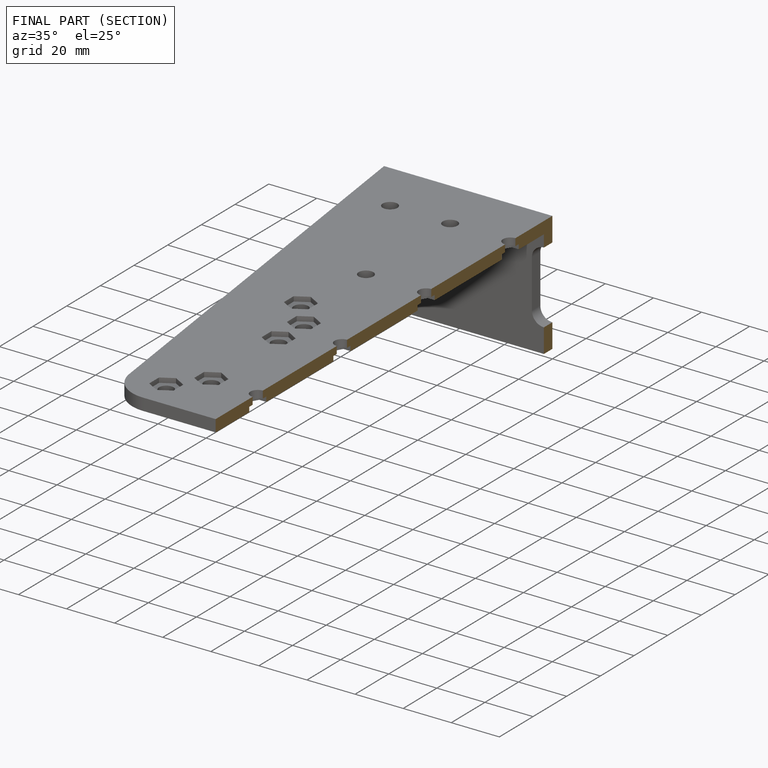
[diagram: finished part — half-section view (interior)]
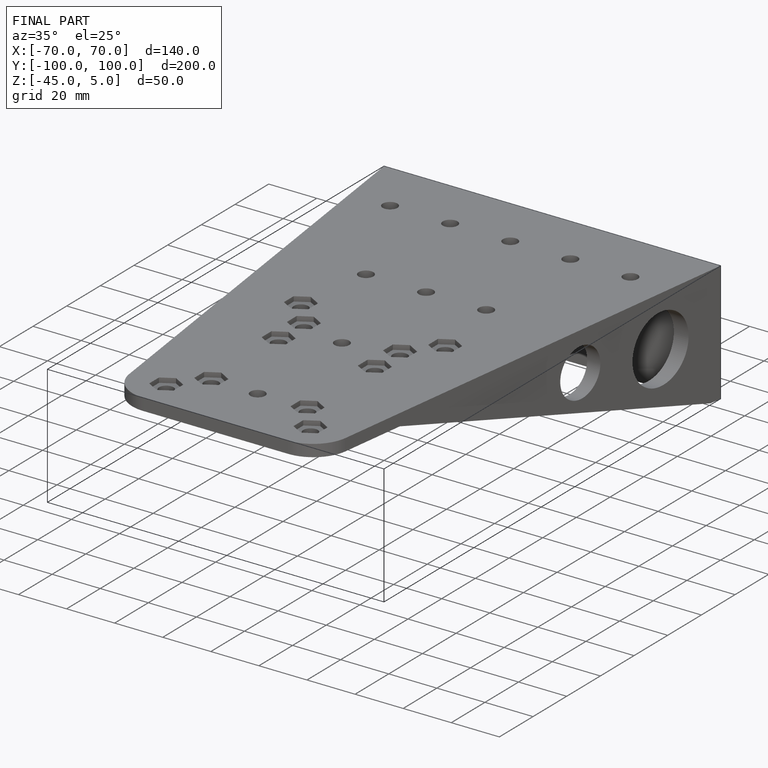
[diagram: finished part — iso view with bounding-box wireframe]
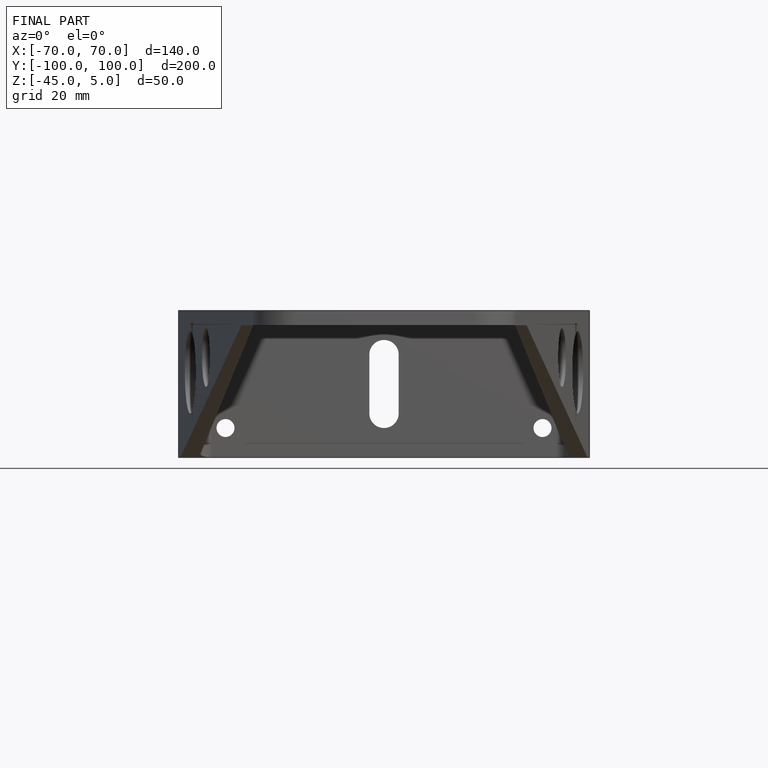
[diagram: finished part — front view with bounding-box wireframe]
